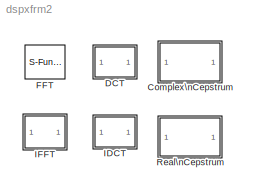
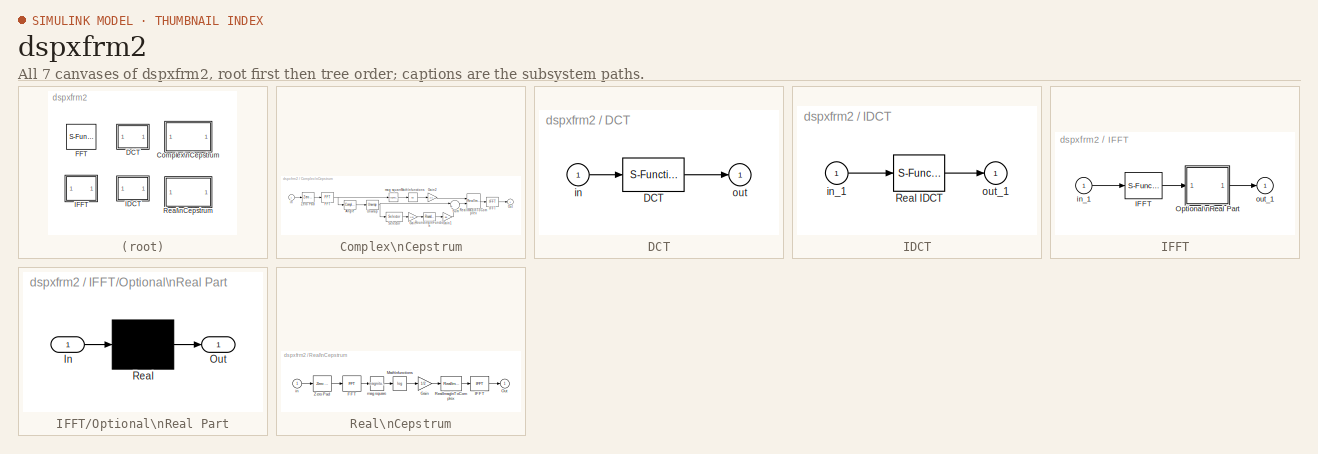
[diagram: thumbnail index - all 7 canvases of the model, root first then tree order]
MODEL dspxfrm2
KIND library
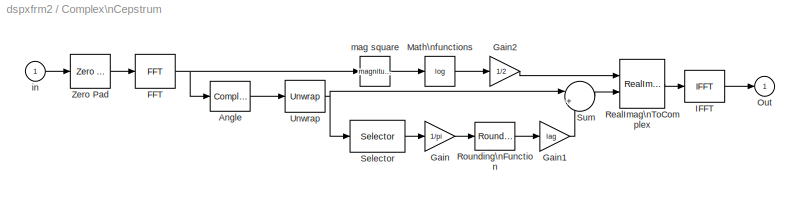
BLOCK [SubSystem] Complex\nCepstrum
  MaskDescription = Complex cepstrum of input signal.  Input is modified to remove possible phase discontinuity at +/- pi radians.\n
  MaskDisplay = disp('Complex\\n Cepstrum')
  MaskEnableString = on
  MaskHelp = web(dspbhelp);\n
  MaskIconFrame = on
  MaskIconOpaque = on
  MaskIconRotate = none
  MaskIconUnits = autoscale
  MaskInitialization = if isempty(N),\n nh=1; lag=1;\nelse\n  nh = fix((N+1)/2); lag = pi*(0:(N-1))/nh;\nend\n
  MaskPromptString = FFT length:
  MaskStyleString = edit
  MaskTunableValueString = off
  MaskType = Complex Cepstrum
  MaskValueString = 64
  MaskVariables = N=@1;
  MaskVisibilityString = on
  Ports = [1, 1, 0, 0, 0]
  ShowPortLabels = on
  TreatAsAtomicUnit = off
BLOCK [ComplexToMagnitudeAngle] Complex\nCepstrum/Angle
  Output = Angle
  Ports = [1, 1, 0, 0, 0]
BLOCK [Reference] Complex\nCepstrum/FFT  REF=dspxfrm2/FFT
  Ports = [1, 1, 0, 0, 0]
  SourceBlock = dspxfrm2/FFT
  SourceType = FFT
  nchans = 1
BLOCK [Gain] Complex\nCepstrum/Gain
  Gain = 1/pi
  Multiplication = Element-wise(K.*u)
  SaturateOnIntegerOverflow = on
BLOCK [Gain] Complex\nCepstrum/Gain1
  Gain = lag
  Multiplication = Element-wise(K.*u)
  SaturateOnIntegerOverflow = on
BLOCK [Gain] Complex\nCepstrum/Gain2
  Gain = 1/2
  Multiplication = Element-wise(K.*u)
  SaturateOnIntegerOverflow = on
BLOCK [Reference] Complex\nCepstrum/IFFT  REF=dspxfrm2/IFFT
  Ports = [1, 1, 0, 0, 0]
  SourceBlock = dspxfrm2/IFFT
  SourceType = IFFT
  cs_in = off
  mode = Real
  nchans = 1
BLOCK [Math] Complex\nCepstrum/Math\nfunctions
  Operator = log
  OutputSignalType = auto
  Ports = [1, 1, 0, 0, 0]
BLOCK [Outport] Complex\nCepstrum/Out
  InitialOutput = 0
  OutputWhenDisabled = held
  Port = 1
BLOCK [RealImagToComplex] Complex\nCepstrum/RealImag\nToComplex
  ConstantPart = 0
  Input = RealAndImag
  Ports = [2, 1, 0, 0, 0]
BLOCK [Rounding] Complex\nCepstrum/Rounding\nFunction
  Operator = round
BLOCK [Selector] Complex\nCepstrum/Selector
  Elements = nh+1
  InputPortWidth = N
BLOCK [Sum] Complex\nCepstrum/Sum
  IconShape = round
  Inputs = |+-
  Ports = [2, 1, 0, 0, 0]
  SaturateOnIntegerOverflow = on
BLOCK [Reference] Complex\nCepstrum/Unwrap  REF=dspvect2/Unwrap
  Ports = [1, 1, 0, 0, 0]
  SourceBlock = dspvect2/Unwrap
  SourceType = Unwrap
  tol = pi
BLOCK [Reference] Complex\nCepstrum/Zero Pad  REF=dspbdsp2/Zero Pad
  Ports = [1, 1, 0, 0, 0]
  SourceBlock = dspbdsp2/Zero Pad
  SourceType = Zero Pad
  nchans = 1
  pad = N
  trunc = on
BLOCK [Inport] Complex\nCepstrum/in
  Interpolate = on
  Port = 1
BLOCK [Math] Complex\nCepstrum/mag square
  Operator = magnitude^2
  OutputSignalType = auto
  Ports = [1, 1, 0, 0, 0]
BLOCK [SubSystem] DCT
  MaskDescription = Discrete cosine transform of a real or complex input vector.  Input frame size must be a power of 2.
  MaskDisplay = disp(' DCT')
  MaskEnableString = on
  MaskHelp = web(dspbhelp);
  MaskIconFrame = on
  MaskIconOpaque = on
  MaskIconRotate = none
  MaskIconUnits = autoscale
  MaskPromptString = Number of channels:
  MaskStyleString = edit
  MaskTunableValueString = on
  MaskType = DCT
  MaskValueString = 1
  MaskVariables = nChans=@1;
  MaskVisibilityString = on
  Ports = [1, 1, 0, 0, 0]
  ShowPortLabels = on
  TreatAsAtomicUnit = off
BLOCK [S-Function] DCT/DCT
  FunctionName = sdspdct2
  Parameters = nChans
  PortCounts = []
  Ports = [1, 1, 0, 0, 0]
BLOCK [Inport] DCT/in
  Interpolate = on
  Port = 1
BLOCK [Outport] DCT/out
  InitialOutput = 0
  OutputWhenDisabled = held
  Port = 1
BLOCK [S-Function] FFT
  FunctionName = sdspfft
  MaskDescription = Fast Fourier transform with complex output.  Input frame size must be a power of 2.
  MaskDisplay = disp('  FFT ');
  MaskEnableString = on
  MaskHelp = web(dspbhelp);
  MaskIconFrame = on
  MaskIconOpaque = on
  MaskIconRotate = none
  MaskIconUnits = autoscale
  MaskPromptString = Number of channels:
  MaskStyleString = edit
  MaskTunableValueString = off
  MaskType = FFT
  MaskValueString = 1
  MaskVariables = nchans=@1;
  MaskVisibilityString = on
  Parameters = nchans
  PortCounts = []
  Ports = [1, 1, 0, 0, 0]
BLOCK [SubSystem] IDCT
  MaskDescription = Inverse discrete cosine transform of a real vector.  Input frame size must be a power of 2.
  MaskDisplay = disp('IDCT')
  MaskEnableString = on
  MaskHelp = web(dspbhelp);
  MaskIconFrame = on
  MaskIconOpaque = on
  MaskIconRotate = none
  MaskIconUnits = autoscale
  MaskPromptString = Number of channels:
  MaskStyleString = edit
  MaskTunableValueString = on
  MaskType = IDCT
  MaskValueString = 1
  MaskVariables = nchans=@1;
  MaskVisibilityString = on
  Ports = [1, 1, 0, 0, 0]
  ShowPortLabels = on
  TreatAsAtomicUnit = off
BLOCK [S-Function] IDCT/Real IDCT
  FunctionName = sdspinvdct
  Parameters = nchans
  PortCounts = []
  Ports = [1, 1, 0, 0, 0]
BLOCK [Inport] IDCT/in_1
  Interpolate = on
  Port = 1
BLOCK [Outport] IDCT/out_1
  InitialOutput = 0
  OutputWhenDisabled = held
  Port = 1
BLOCK [SubSystem] IFFT
  MaskCallbackString = dspblkifft||
  MaskDescription = Inverse fast Fourier transform of a complex input vector with real or complex output.  Input frame size must be a power of 2.
  MaskDisplay = disp('  IFFT')
  MaskEnableString = on,on,on
  MaskHelp = web(dspbhelp);
  MaskIconFrame = on
  MaskIconOpaque = on
  MaskIconRotate = none
  MaskIconUnits = autoscale
  MaskInitialization = realmode = (mode == 1);\nif ( cs_in == 1), mode = 3; end;\n
  MaskPromptString = Output:|Conjugate symmetric input|Number of channels:
  MaskSelfModifiable = on
  MaskStyleString = popup(Real|Complex),checkbox,edit
  MaskTunableValueString = off,off,off
  MaskType = IFFT
  MaskValueString = Real|off|1
  MaskVariables = mode=@1;cs_in=@2;nchans=@3;
  MaskVisibilityString = on,on,on
  Ports = [1, 1, 0, 0, 0]
  ShowPortLabels = on
  TreatAsAtomicUnit = off
BLOCK [S-Function] IFFT/IFFT
  FunctionName = sdspifft
  Parameters = mode,nchans
  PortCounts = []
  Ports = [1, 1, 0, 0, 0]
BLOCK [SubSystem] IFFT/Optional\nReal Part
  MaskCallbackString = |||
  MaskDescription = Configurable subsystem holding blocks which may be replaced by virtual short-circuits (muxes) when not needed.
  MaskEnableString = on,on,on,on
  MaskHelp = \n
  MaskIconFrame = on
  MaskIconOpaque = on
  MaskIconRotate = none
  MaskIconUnits = autoscale
  MaskInitialization = opts.name = oname; opts.src = osrc; opts.args = oargs;\ndspskipblk(gcb,opts,replace);\n
  MaskPromptString = Relative name of blocks to replace:|Simulink path to each source block:|Parameter/value pairs to each block:|Replace with short-circuit:
  MaskSelfModifiable = on
  MaskStyleString = edit,edit,edit,edit
  MaskTunableValueString = off,off,off,off
  MaskType = Replaceable Contents
  MaskValueString = Real|built-in/ComplexToRealImag|{'output','Real'}|~realmode
  MaskVariables = oname=&1;osrc=&2;oargs=@3;replace=@4;
  MaskVisibilityString = on,on,on,on
  Ports = [1, 1, 0, 0, 0]
  ShowPortLabels = on
  TreatAsAtomicUnit = off
BLOCK [Inport] IFFT/Optional\nReal Part/In
  Interpolate = on
  Port = 1
BLOCK [Outport] IFFT/Optional\nReal Part/Out
  InitialOutput = 0
  OutputWhenDisabled = held
  Port = 1
BLOCK [Mux] IFFT/Optional\nReal Part/Real
  DisplayOption = none
  Inputs = 1
  Ports = [1, 1, 0, 0, 0]
BLOCK [Inport] IFFT/in_1
  Interpolate = on
  Port = 1
BLOCK [Outport] IFFT/out_1
  InitialOutput = 0
  OutputWhenDisabled = held
  Port = 1
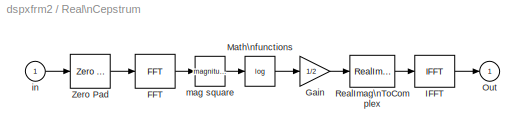
BLOCK [SubSystem] Real\nCepstrum
  MaskDescription = Real cepstrum of input signal.
  MaskDisplay = disp('Real\\nCepstrum')
  MaskEnableString = on
  MaskHelp = web(dspbhelp);\n
  MaskIconFrame = on
  MaskIconOpaque = on
  MaskIconRotate = none
  MaskIconUnits = autoscale
  MaskInitialization = \n\n\n
  MaskPromptString = FFT length:
  MaskStyleString = edit
  MaskTunableValueString = off
  MaskType = Real Cepstrum
  MaskValueString = 64
  MaskVariables = N=@1;
  MaskVisibilityString = on
  Ports = [1, 1, 0, 0, 0]
  ShowPortLabels = on
  TreatAsAtomicUnit = off
BLOCK [Reference] Real\nCepstrum/FFT  REF=dspxfrm2/FFT
  Ports = [1, 1, 0, 0, 0]
  SourceBlock = dspxfrm2/FFT
  SourceType = FFT
  nchans = 1
BLOCK [Gain] Real\nCepstrum/Gain
  Gain = 1/2
  Multiplication = Element-wise(K.*u)
  SaturateOnIntegerOverflow = on
BLOCK [Reference] Real\nCepstrum/IFFT  REF=dspxfrm2/IFFT
  Ports = [1, 1, 0, 0, 0]
  SourceBlock = dspxfrm2/IFFT
  SourceType = IFFT
  cs_in = off
  mode = Real
  nchans = 1
BLOCK [Math] Real\nCepstrum/Math\nfunctions
  Operator = log
  OutputSignalType = auto
  Ports = [1, 1, 0, 0, 0]
BLOCK [Outport] Real\nCepstrum/Out
  InitialOutput = 0
  OutputWhenDisabled = held
  Port = 1
BLOCK [RealImagToComplex] Real\nCepstrum/RealImag\nToComplex
  ConstantPart = 0
  Input = Real
  Ports = [1, 1, 0, 0, 0]
BLOCK [Reference] Real\nCepstrum/Zero Pad  REF=dspbdsp2/Zero Pad
  Ports = [1, 1, 0, 0, 0]
  SourceBlock = dspbdsp2/Zero Pad
  SourceType = Zero Pad
  nchans = 1
  pad = N
  trunc = on
BLOCK [Inport] Real\nCepstrum/in
  Interpolate = on
  Port = 1
BLOCK [Math] Real\nCepstrum/mag square
  Operator = magnitude^2
  OutputSignalType = auto
  Ports = [1, 1, 0, 0, 0]
LINE Complex\nCepstrum/Angle:1 -> Complex\nCepstrum/Unwrap:1
NET Complex\nCepstrum/FFT:1 -> Complex\nCepstrum/Angle:1, Complex\nCepstrum/mag square:1
LINE Complex\nCepstrum/Gain1:1 -> Complex\nCepstrum/Sum:2
LINE Complex\nCepstrum/Gain2:1 -> Complex\nCepstrum/RealImag\nToComplex:1
LINE Complex\nCepstrum/Gain:1 -> Complex\nCepstrum/Rounding\nFunction:1
LINE Complex\nCepstrum/IFFT:1 -> Complex\nCepstrum/Out:1
LINE Complex\nCepstrum/Math\nfunctions:1 -> Complex\nCepstrum/Gain2:1
LINE Complex\nCepstrum/RealImag\nToComplex:1 -> Complex\nCepstrum/IFFT:1
LINE Complex\nCepstrum/Rounding\nFunction:1 -> Complex\nCepstrum/Gain1:1
LINE Complex\nCepstrum/Selector:1 -> Complex\nCepstrum/Gain:1
LINE Complex\nCepstrum/Sum:1 -> Complex\nCepstrum/RealImag\nToComplex:2
NET Complex\nCepstrum/Unwrap:1 -> Complex\nCepstrum/Selector:1, Complex\nCepstrum/Sum:1
LINE Complex\nCepstrum/Zero Pad:1 -> Complex\nCepstrum/FFT:1
LINE Complex\nCepstrum/in:1 -> Complex\nCepstrum/Zero Pad:1
LINE Complex\nCepstrum/mag square:1 -> Complex\nCepstrum/Math\nfunctions:1
LINE DCT/DCT:1 -> DCT/out:1
LINE DCT/in:1 -> DCT/DCT:1
LINE IDCT/Real IDCT:1 -> IDCT/out_1:1
LINE IDCT/in_1:1 -> IDCT/Real IDCT:1
LINE IFFT/IFFT:1 -> IFFT/Optional\nReal Part:1
LINE IFFT/Optional\nReal Part/In:1 -> IFFT/Optional\nReal Part/Real:1
LINE IFFT/Optional\nReal Part/Real:1 -> IFFT/Optional\nReal Part/Out:1
LINE IFFT/Optional\nReal Part:1 -> IFFT/out_1:1
LINE IFFT/in_1:1 -> IFFT/IFFT:1
LINE Real\nCepstrum/FFT:1 -> Real\nCepstrum/mag square:1
LINE Real\nCepstrum/Gain:1 -> Real\nCepstrum/RealImag\nToComplex:1
LINE Real\nCepstrum/IFFT:1 -> Real\nCepstrum/Out:1
LINE Real\nCepstrum/Math\nfunctions:1 -> Real\nCepstrum/Gain:1
LINE Real\nCepstrum/RealImag\nToComplex:1 -> Real\nCepstrum/IFFT:1
LINE Real\nCepstrum/Zero Pad:1 -> Real\nCepstrum/FFT:1
LINE Real\nCepstrum/in:1 -> Real\nCepstrum/Zero Pad:1
LINE Real\nCepstrum/mag square:1 -> Real\nCepstrum/Math\nfunctions:1
note: NET lines group one-source signal fan-out (src -> all destinations, sorted); 1:1 wires keep LINE
